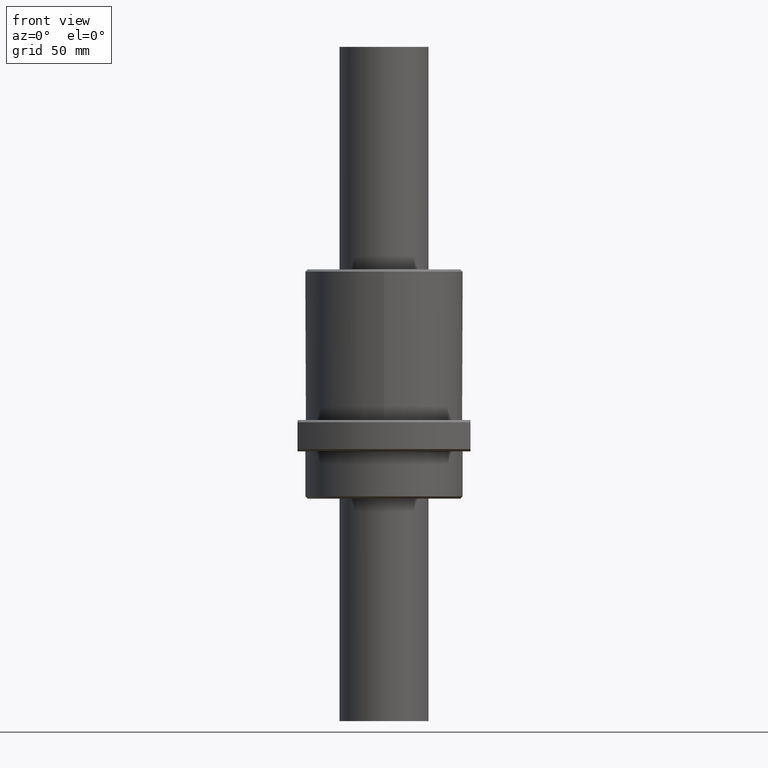
[diagram: clean part render]
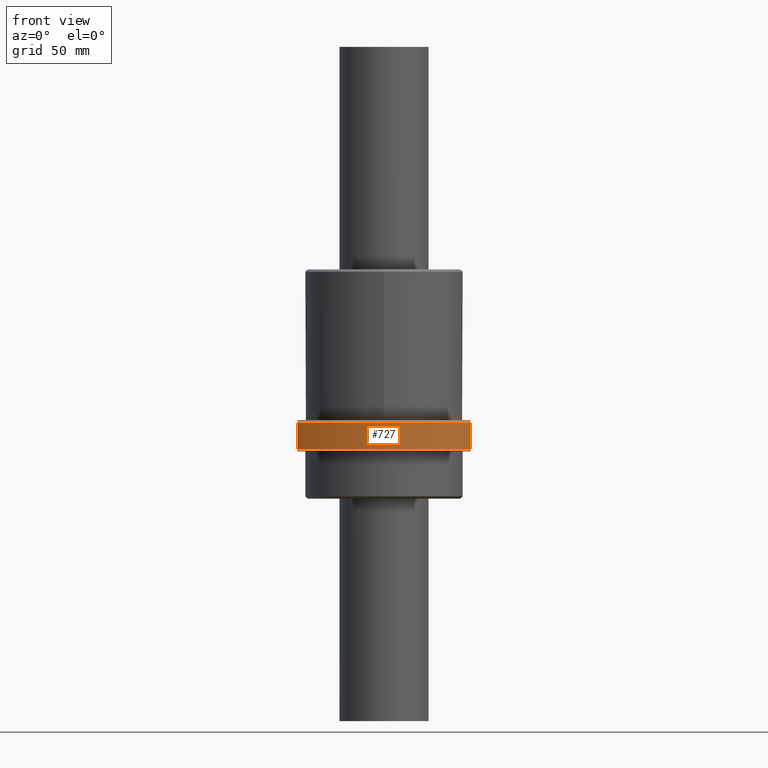
[diagram: same view with one face highlighted and labeled with its STEP entity id]
A machine part, front view. The second image highlights one B-rep face of the part: STEP entity #727.
In plain terms, the highlighted cylindrical surface (partial cylindrical patch) has radius 50 mm, axis along (0, 0, -1).
Its self-contained STEP definition (entity closure, byte-faithful):
#5 = VERTEX_POINT ( 'NONE', #1902 ) ;
#6 = DIRECTION ( 'NONE',  ( -0.0000000000000000000, -0.0000000000000000000, -1.000000000000000000 ) ) ;
#7 = CARTESIAN_POINT ( 'NONE',  ( 38.50000704099999600, -31.90218444000000300, -28.00000000000000400 ) ) ;
#10 = LINE ( 'NONE', #7, #1837 ) ;
#14 = DIRECTION ( 'NONE',  ( 0.0000000000000000000, 0.0000000000000000000, 1.000000000000000000 ) ) ;
#15 = CARTESIAN_POINT ( 'NONE',  ( -38.49999255900000600, -31.90220191600000300, -28.00000000000000400 ) ) ;
#22 = LINE ( 'NONE', #15, #1238 ) ;
#391 = CIRCLE ( 'NONE', #1950, 50.00000000000000000 ) ;
#618 = EDGE_CURVE ( 'NONE', #1045, #5, #391, .T. ) ;
#688 = CYLINDRICAL_SURFACE ( 'NONE', #742, 50.00000000000000000 ) ;
#727 = ADVANCED_FACE ( 'NONE', ( #927 ), #688, .T. ) ;
#742 = AXIS2_PLACEMENT_3D ( 'NONE', #1231, #1227, #1534 ) ;
#765 = DIRECTION ( 'NONE',  ( 1.000000000000000000, 0.0000000000000000000, 0.0000000000000000000 ) ) ;
#771 = DIRECTION ( 'NONE',  ( 0.0000000000000000000, 0.0000000000000000000, 1.000000000000000000 ) ) ;
#790 = CARTESIAN_POINT ( 'NONE',  ( 0.0000000000000000000, 0.0000000000000000000, -22.00000000600006100 ) ) ;
#804 = VERTEX_POINT ( 'NONE', #1089 ) ;
#853 = CARTESIAN_POINT ( 'NONE',  ( 38.50000704099999600, -31.90218511236125900, -34.00000042899586800 ) ) ;
#927 = FACE_OUTER_BOUND ( 'NONE', #1632, .T. ) ;
#930 = VERTEX_POINT ( 'NONE', #995 ) ;
#995 = CARTESIAN_POINT ( 'NONE',  ( -38.49999255900000600, -31.90220258889798200, -21.99999957366147300 ) ) ;
#1045 = VERTEX_POINT ( 'NONE', #853 ) ;
#1089 = CARTESIAN_POINT ( 'NONE',  ( 38.50000704099999600, -31.90218453886194200, -21.99999963708240000 ) ) ;
#1095 = EDGE_CURVE ( 'NONE', #930, #804, #1754, .T. ) ;
#1227 = DIRECTION ( 'NONE',  ( 0.0000000000000000000, -0.0000000000000000000, 1.000000000000000000 ) ) ;
#1231 = CARTESIAN_POINT ( 'NONE',  ( 0.0000000000000000000, 0.0000000000000000000, -34.00000000000000000 ) ) ;
#1238 = VECTOR ( 'NONE', #14, 1000.000000000000000 ) ;
#1315 = DIRECTION ( 'NONE',  ( 1.000000000000000000, 0.0000000000000000000, 0.0000000000000000000 ) ) ;
#1319 = DIRECTION ( 'NONE',  ( -0.0000000000000000000, -0.0000000000000000000, -1.000000000000000000 ) ) ;
#1453 = AXIS2_PLACEMENT_3D ( 'NONE', #790, #771, #765 ) ;
#1533 = ORIENTED_EDGE ( 'NONE', *, *, #1095, .F. ) ;
#1534 = DIRECTION ( 'NONE',  ( 1.000000000000000000, 0.0000000000000000000, 0.0000000000000000000 ) ) ;
#1557 = CARTESIAN_POINT ( 'NONE',  ( 0.0000000000000000000, 0.0000000000000000000, -34.00000000000000000 ) ) ;
#1632 = EDGE_LOOP ( 'NONE', ( #1533, #1813, #1772, #1916 ) ) ;
#1681 = EDGE_CURVE ( 'NONE', #5, #930, #22, .T. ) ;
#1683 = EDGE_CURVE ( 'NONE', #804, #1045, #10, .T. ) ;
#1754 = CIRCLE ( 'NONE', #1453, 50.00000000000000000 ) ;
#1772 = ORIENTED_EDGE ( 'NONE', *, *, #618, .F. ) ;
#1813 = ORIENTED_EDGE ( 'NONE', *, *, #1681, .F. ) ;
#1837 = VECTOR ( 'NONE', #6, 1000.000000000000000 ) ;
#1902 = CARTESIAN_POINT ( 'NONE',  ( -38.49999255900000600, -31.90220208928484200, -34.00000031877519300 ) ) ;
#1916 = ORIENTED_EDGE ( 'NONE', *, *, #1683, .F. ) ;
#1950 = AXIS2_PLACEMENT_3D ( 'NONE', #1557, #1319, #1315 ) ;